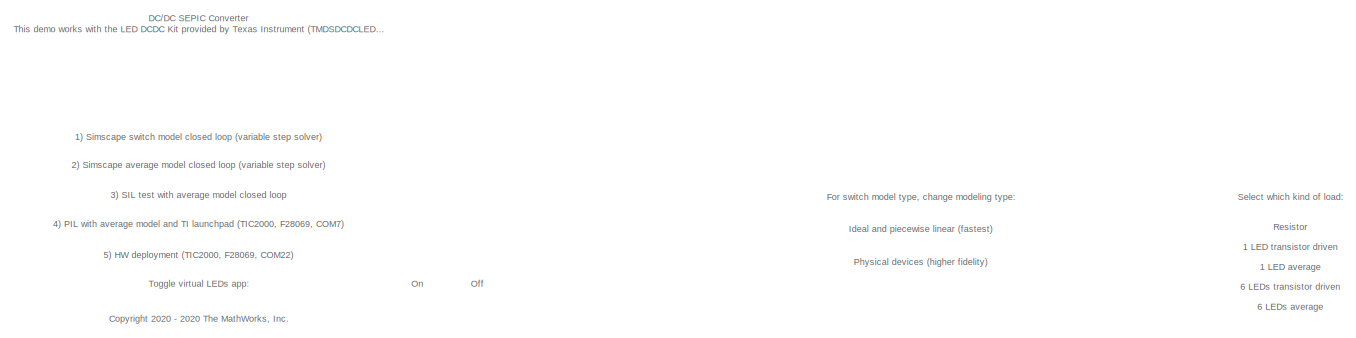
[diagram: root canvas - part 1/3, top center region]
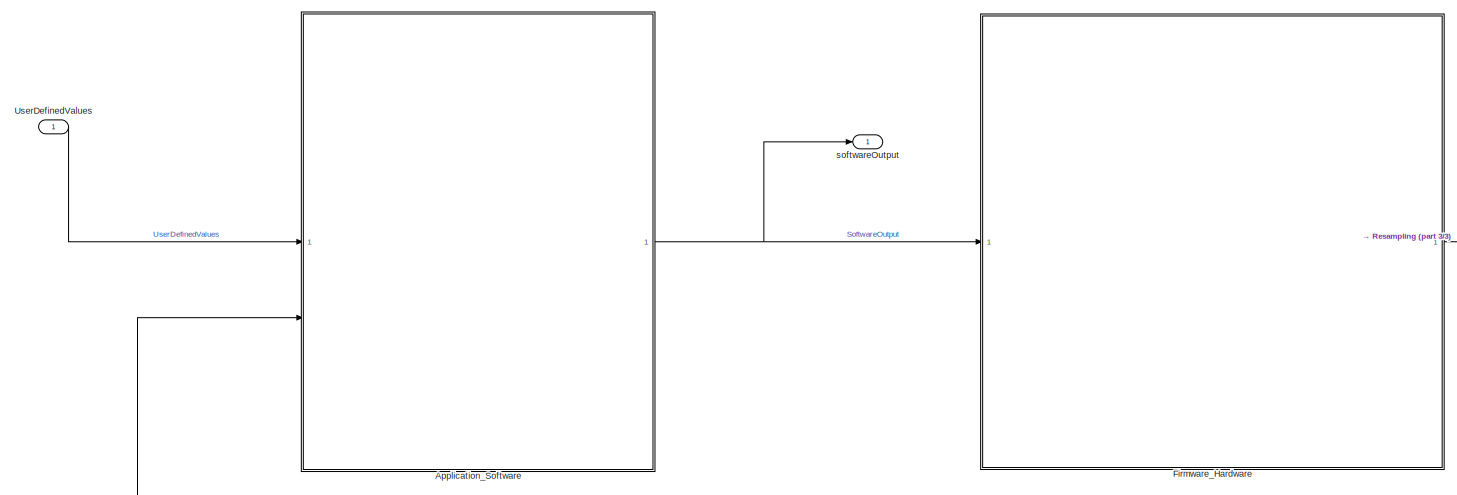
[diagram: root canvas - part 2/3, full width, middle band]
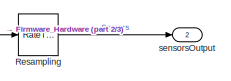
[diagram: root canvas - part 3/3, middle right region]
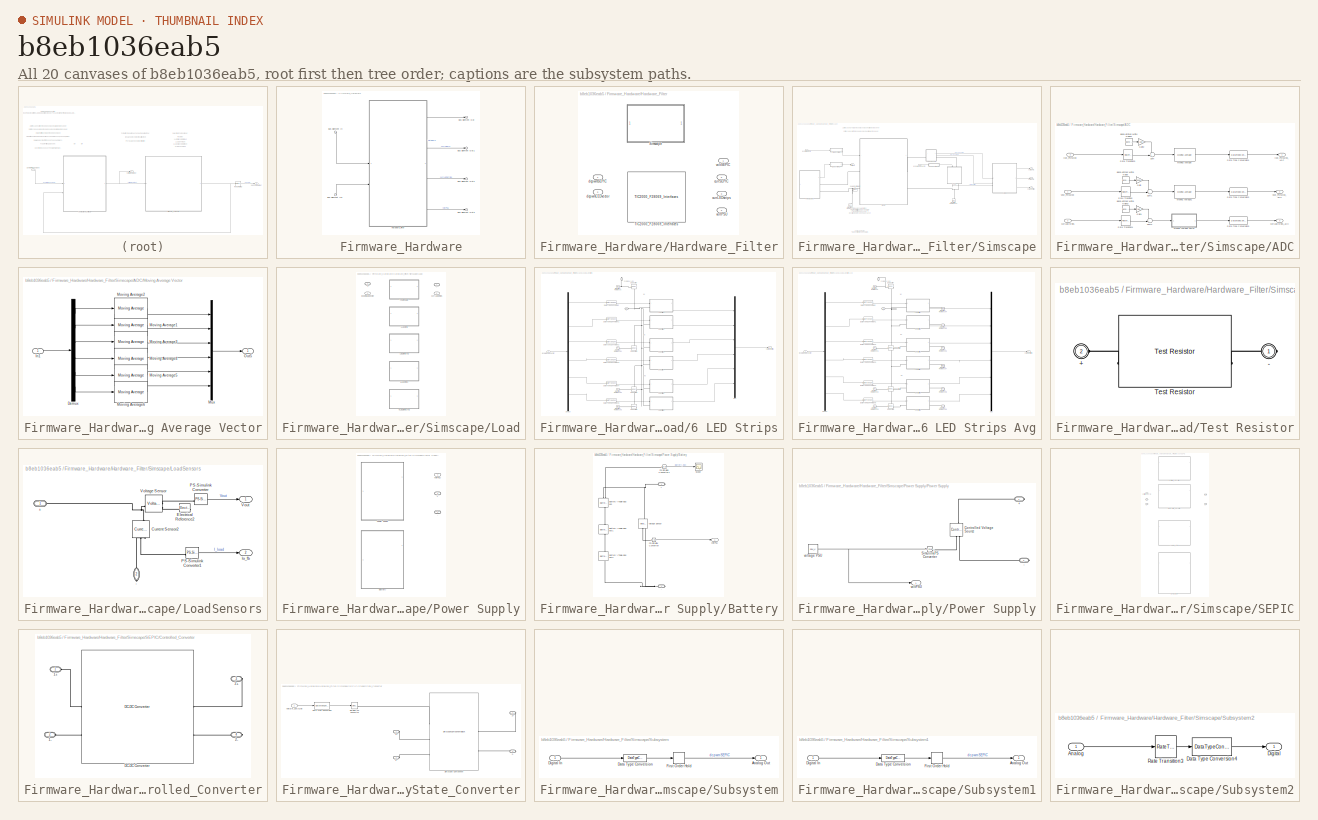
[diagram: thumbnail index - all 20 canvases of the model, root first then tree order]
MODEL slx_b8eb1036eab5
KIND model
CONFIG AbsTol = auto
CONFIG EnableMultiTasking = off
CONFIG FixedStep = ts500us
CONFIG MaxStep = 1
CONFIG MinStep = auto
CONFIG RelTol = 1e-3
CONFIG SampleTimeConstraint = Unconstrained
CONFIG SolverName = ode23t
CONFIG StartFcn = %Deal with possible App Objects still open:\ntry\nresetTiLeds(objLEDs);\nend
CONFIG StartTime = 0.0
CONFIG StopTime = 10
BLOCK [ModelReference] Application_Software
  ModelNameDialog = Application_Software
  ModelReferenceVersion = 7.4
BLOCK [SubSystem] Firmware_Hardware
BLOCK [Inport] Firmware_Hardware/Bus Element In
BLOCK [Inport] Firmware_Hardware/Bus Element In1
BLOCK [Outport] Firmware_Hardware/Bus Element Out
BLOCK [Outport] Firmware_Hardware/Bus Element Out1
BLOCK [Outport] Firmware_Hardware/Bus Element Out2
BLOCK [Outport] Firmware_Hardware/Bus Element Out3
BLOCK [SubSystem] Firmware_Hardware/Hardware_Filter
  AllowZeroVariantControls = on
  Variant = on
  VariantControl = Variant1
BLOCK [SubSystem] Firmware_Hardware/Hardware_Filter/Simscape
  VariantControl = Var_Plant==0
BLOCK [SubSystem] Firmware_Hardware/Hardware_Filter/Simscape/ADC
BLOCK [Reference] Firmware_Hardware/Hardware_Filter/Simscape/ADC/Band-Limited White Noise  REF=simulink/Sources/Band-Limited
White Noise
  SourceBlock = simulink/Sources/Band-Limited\nWhite Noise
  SourceType = Band-Limited White Noise.
BLOCK [Reference] Firmware_Hardware/Hardware_Filter/Simscape/ADC/Band-Limited White Noise1  REF=simulink/Sources/Band-Limited
White Noise
  SourceBlock = simulink/Sources/Band-Limited\nWhite Noise
  SourceType = Band-Limited White Noise.
BLOCK [Reference] Firmware_Hardware/Hardware_Filter/Simscape/ADC/Band-Limited White Noise2  REF=simulink/Sources/Band-Limited
White Noise
  SourceBlock = simulink/Sources/Band-Limited\nWhite Noise
  SourceType = Band-Limited White Noise.
BLOCK [DataTypeConversion] Firmware_Hardware/Hardware_Filter/Simscape/ADC/Data Type Conversion1
  OutDataTypeStr = single
  RndMeth = Floor
  SaturateOnIntegerOverflow = off
BLOCK [DataTypeConversion] Firmware_Hardware/Hardware_Filter/Simscape/ADC/Data Type Conversion2
  OutDataTypeStr = single
  RndMeth = Floor
  SaturateOnIntegerOverflow = off
BLOCK [DataTypeConversion] Firmware_Hardware/Hardware_Filter/Simscape/ADC/Data Type Conversion3
  OutDataTypeStr = single
  RndMeth = Floor
  SaturateOnIntegerOverflow = off
BLOCK [Gain] Firmware_Hardware/Hardware_Filter/Simscape/ADC/Gain
  Gain = 0.006
BLOCK [Gain] Firmware_Hardware/Hardware_Filter/Simscape/ADC/Gain1
  Gain = 1/60
BLOCK [Gain] Firmware_Hardware/Hardware_Filter/Simscape/ADC/Gain2
  Gain = 1/60
BLOCK [Inport] Firmware_Hardware/Hardware_Filter/Simscape/ADC/Iout_PhysMod
  Port = 2
BLOCK [Outport] Firmware_Hardware/Hardware_Filter/Simscape/ADC/Iout_PhysMod_ADC
BLOCK [Reference] Firmware_Hardware/Hardware_Filter/Simscape/ADC/Moving Average  REF=dspstat3/Moving
Average
  SourceBlock = dspstat3/Moving\nAverage
  SourceType = dsp.simulink.MovingAverage
BLOCK [SubSystem] Firmware_Hardware/Hardware_Filter/Simscape/ADC/Moving Average Vector
BLOCK [Demux] Firmware_Hardware/Hardware_Filter/Simscape/ADC/Moving Average Vector/Demux
  Outputs = 6
BLOCK [Inport] Firmware_Hardware/Hardware_Filter/Simscape/ADC/Moving Average Vector/In1
BLOCK [Reference] Firmware_Hardware/Hardware_Filter/Simscape/ADC/Moving Average Vector/Moving Average1  REF=dspstat3/Moving
Average
  SourceBlock = dspstat3/Moving\nAverage
  SourceType = dsp.simulink.MovingAverage
BLOCK [Reference] Firmware_Hardware/Hardware_Filter/Simscape/ADC/Moving Average Vector/Moving Average2  REF=dspstat3/Moving
Average
  SourceBlock = dspstat3/Moving\nAverage
  SourceType = dsp.simulink.MovingAverage
BLOCK [Reference] Firmware_Hardware/Hardware_Filter/Simscape/ADC/Moving Average Vector/Moving Average3  REF=dspstat3/Moving
Average
  SourceBlock = dspstat3/Moving\nAverage
  SourceType = dsp.simulink.MovingAverage
BLOCK [Reference] Firmware_Hardware/Hardware_Filter/Simscape/ADC/Moving Average Vector/Moving Average4  REF=dspstat3/Moving
Average
  SourceBlock = dspstat3/Moving\nAverage
  SourceType = dsp.simulink.MovingAverage
BLOCK [Reference] Firmware_Hardware/Hardware_Filter/Simscape/ADC/Moving Average Vector/Moving Average5  REF=dspstat3/Moving
Average
  SourceBlock = dspstat3/Moving\nAverage
  SourceType = dsp.simulink.MovingAverage
BLOCK [Reference] Firmware_Hardware/Hardware_Filter/Simscape/ADC/Moving Average Vector/Moving Average6  REF=dspstat3/Moving
Average
  SourceBlock = dspstat3/Moving\nAverage
  SourceType = dsp.simulink.MovingAverage
BLOCK [Mux] Firmware_Hardware/Hardware_Filter/Simscape/ADC/Moving Average Vector/Mux
  DisplayOption = bar
  Inputs = 6
BLOCK [Outport] Firmware_Hardware/Hardware_Filter/Simscape/ADC/Moving Average Vector/Out5
BLOCK [Reference] Firmware_Hardware/Hardware_Filter/Simscape/ADC/Moving Average1  REF=dspstat3/Moving
Average
  SourceBlock = dspstat3/Moving\nAverage
  SourceType = dsp.simulink.MovingAverage
BLOCK [RateTransition] Firmware_Hardware/Hardware_Filter/Simscape/ADC/Rate Transition
  OutPortSampleTime = ts500us
BLOCK [RateTransition] Firmware_Hardware/Hardware_Filter/Simscape/ADC/Rate Transition3
  OutPortSampleTime = ts10ms
BLOCK [RateTransition] Firmware_Hardware/Hardware_Filter/Simscape/ADC/Rate Transition4
  OutPortSampleTime = ts500us
BLOCK [Sum] Firmware_Hardware/Hardware_Filter/Simscape/ADC/Sum
  Inputs = ++|
BLOCK [Sum] Firmware_Hardware/Hardware_Filter/Simscape/ADC/Sum1
  Inputs = ++|
BLOCK [Sum] Firmware_Hardware/Hardware_Filter/Simscape/ADC/Sum2
  Inputs = ++|
BLOCK [Inport] Firmware_Hardware/Hardware_Filter/Simscape/ADC/Vout_PhysMod
BLOCK [Outport] Firmware_Hardware/Hardware_Filter/Simscape/ADC/Vout_PhysMod_ADC
  Port = 2
BLOCK [Inport] Firmware_Hardware/Hardware_Filter/Simscape/ADC/currLEDstrips
  Port = 3
BLOCK [Outport] Firmware_Hardware/Hardware_Filter/Simscape/ADC/currLEDstrips_ADC
  Port = 3
BLOCK [Reference] Firmware_Hardware/Hardware_Filter/Simscape/Electrical Reference1  REF=fl_lib/Electrical/Electrical Elements/Electrical Reference
  NameLocation = right
  SourceBlock = fl_lib/Electrical/Electrical Elements/Electrical Reference
  SourceType = Electrical Reference
BLOCK [Reference] Firmware_Hardware/Hardware_Filter/Simscape/Electrical Reference2  REF=fl_lib/Electrical/Electrical Elements/Electrical Reference
  NameLocation = right
  SourceBlock = fl_lib/Electrical/Electrical Elements/Electrical Reference
  SourceType = Electrical Reference
BLOCK [SubSystem] Firmware_Hardware/Hardware_Filter/Simscape/Load
  LabelModeActiveChoice = SixLEDStripsAvg
  NameLocation = right
  Variant = on
  VariantControl = Variant1
  VariantControlMode = label
BLOCK [PMIOPort] Firmware_Hardware/Hardware_Filter/Simscape/Load/+
  Port = 2
  Side = Left
BLOCK [PMIOPort] Firmware_Hardware/Hardware_Filter/Simscape/Load/-
  Side = Right
BLOCK [SubSystem] Firmware_Hardware/Hardware_Filter/Simscape/Load/1 LED Strip
  ReferencedSubsystem = s1_LED_Strip
  VariantControl = SingleLEDStrip
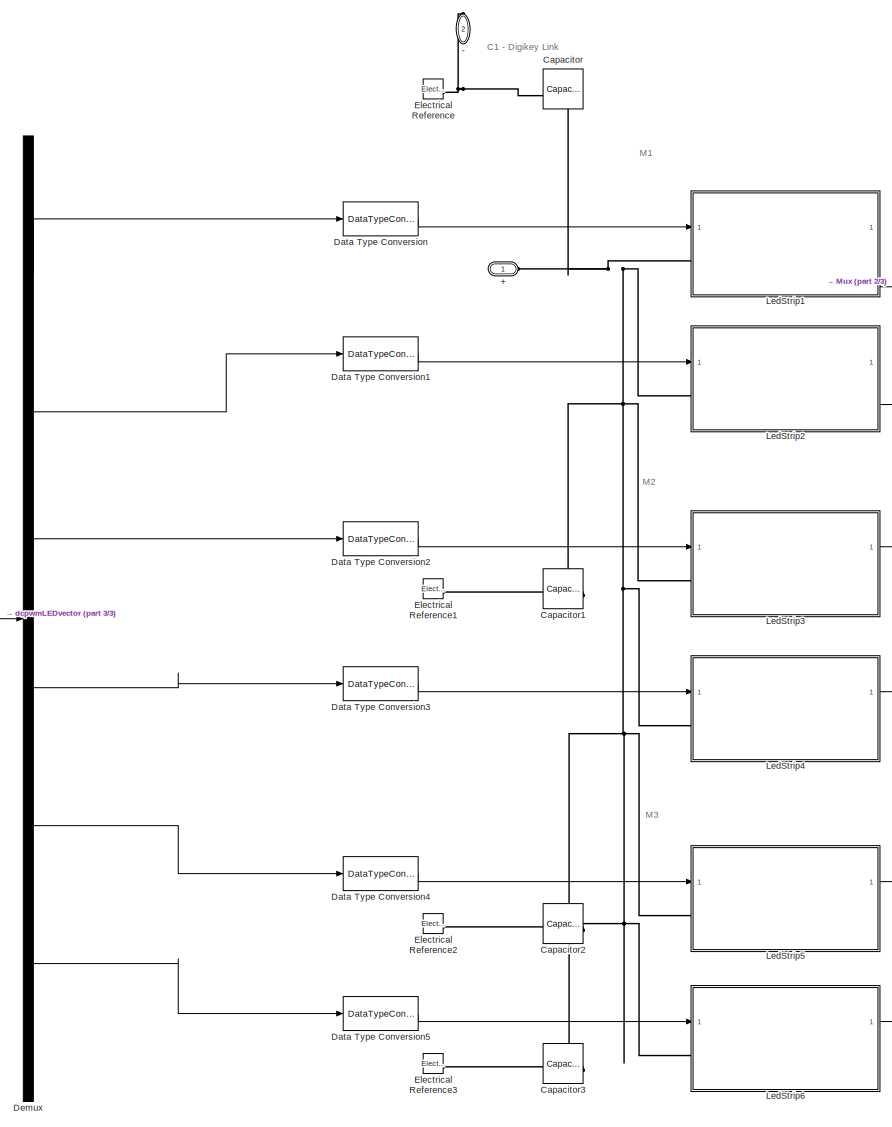
[diagram: Firmware_Hardware/Hardware_Filter/Simscape/Load/6 LED Strips - part 1/3, center side, full height]
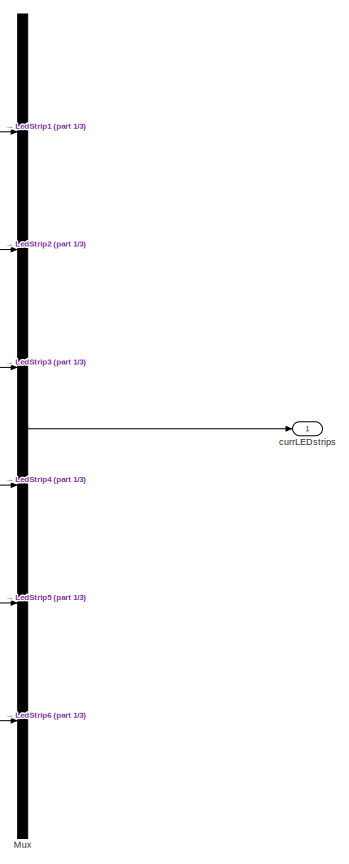
[diagram: Firmware_Hardware/Hardware_Filter/Simscape/Load/6 LED Strips - part 2/3, right side, full height]
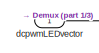
[diagram: Firmware_Hardware/Hardware_Filter/Simscape/Load/6 LED Strips - part 3/3, middle left region]
BLOCK [SubSystem] Firmware_Hardware/Hardware_Filter/Simscape/Load/6 LED Strips
  VariantControl = SixLEDStrips
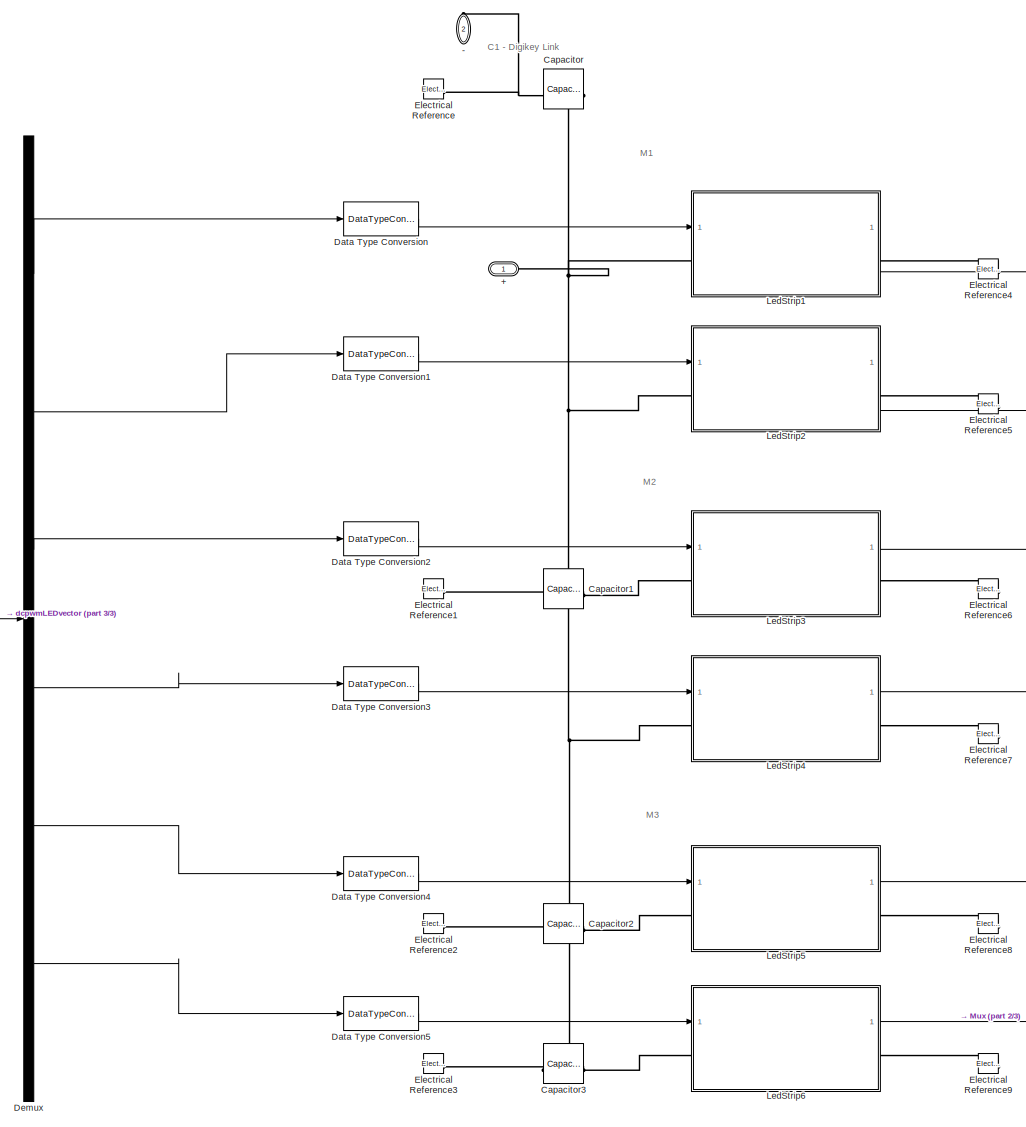
[diagram: Firmware_Hardware/Hardware_Filter/Simscape/Load/6 LED Strips Avg - part 1/3, center side, full height]
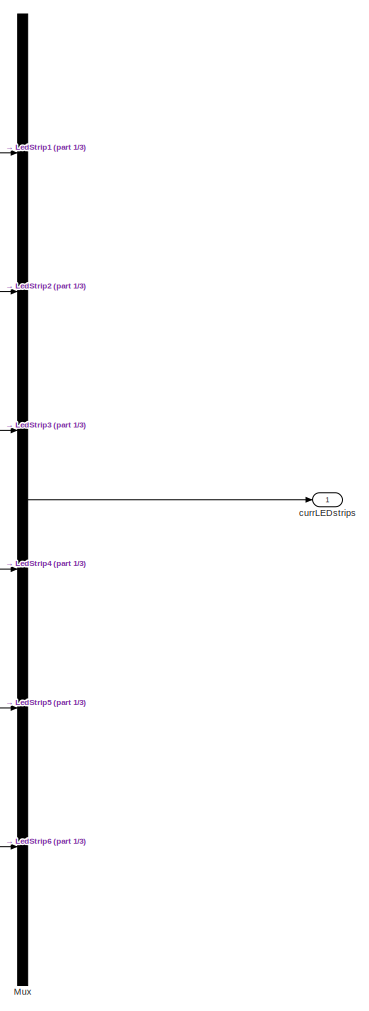
[diagram: Firmware_Hardware/Hardware_Filter/Simscape/Load/6 LED Strips Avg - part 2/3, right side, full height]
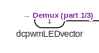
[diagram: Firmware_Hardware/Hardware_Filter/Simscape/Load/6 LED Strips Avg - part 3/3, middle left region]
BLOCK [SubSystem] Firmware_Hardware/Hardware_Filter/Simscape/Load/6 LED Strips Avg
  VariantControl = SixLEDStripsAvg
BLOCK [PMIOPort] Firmware_Hardware/Hardware_Filter/Simscape/Load/6 LED Strips Avg/+
  Side = Left
BLOCK [PMIOPort] Firmware_Hardware/Hardware_Filter/Simscape/Load/6 LED Strips Avg/-
  NameLocation = right
  Port = 2
  Side = Right
BLOCK [Reference] Firmware_Hardware/Hardware_Filter/Simscape/Load/6 LED Strips Avg/Capacitor  REF=ee_lib/Passive/Capacitor
  NameLocation = top
  SourceBlock = ee_lib/Passive/Capacitor
  SourceType = Capacitor
BLOCK [Reference] Firmware_Hardware/Hardware_Filter/Simscape/Load/6 LED Strips Avg/Capacitor1  REF=ee_lib/Passive/Capacitor
  NameLocation = top
  SourceBlock = ee_lib/Passive/Capacitor
  SourceType = Capacitor
BLOCK [Reference] Firmware_Hardware/Hardware_Filter/Simscape/Load/6 LED Strips Avg/Capacitor2  REF=ee_lib/Passive/Capacitor
  NameLocation = top
  SourceBlock = ee_lib/Passive/Capacitor
  SourceType = Capacitor
BLOCK [Reference] Firmware_Hardware/Hardware_Filter/Simscape/Load/6 LED Strips Avg/Capacitor3  REF=ee_lib/Passive/Capacitor
  NameLocation = top
  SourceBlock = ee_lib/Passive/Capacitor
  SourceType = Capacitor
BLOCK [DataTypeConversion] Firmware_Hardware/Hardware_Filter/Simscape/Load/6 LED Strips Avg/Data Type Conversion
  OutDataTypeStr = double
  RndMeth = Floor
  SaturateOnIntegerOverflow = off
BLOCK [DataTypeConversion] Firmware_Hardware/Hardware_Filter/Simscape/Load/6 LED Strips Avg/Data Type Conversion1
  OutDataTypeStr = double
  RndMeth = Floor
  SaturateOnIntegerOverflow = off
BLOCK [DataTypeConversion] Firmware_Hardware/Hardware_Filter/Simscape/Load/6 LED Strips Avg/Data Type Conversion2
  OutDataTypeStr = double
  RndMeth = Floor
  SaturateOnIntegerOverflow = off
BLOCK [DataTypeConversion] Firmware_Hardware/Hardware_Filter/Simscape/Load/6 LED Strips Avg/Data Type Conversion3
  OutDataTypeStr = double
  RndMeth = Floor
  SaturateOnIntegerOverflow = off
BLOCK [DataTypeConversion] Firmware_Hardware/Hardware_Filter/Simscape/Load/6 LED Strips Avg/Data Type Conversion4
  OutDataTypeStr = double
  RndMeth = Floor
  SaturateOnIntegerOverflow = off
BLOCK [DataTypeConversion] Firmware_Hardware/Hardware_Filter/Simscape/Load/6 LED Strips Avg/Data Type Conversion5
  OutDataTypeStr = double
  RndMeth = Floor
  SaturateOnIntegerOverflow = off
BLOCK [Demux] Firmware_Hardware/Hardware_Filter/Simscape/Load/6 LED Strips Avg/Demux
  Outputs = 6
BLOCK [Reference] Firmware_Hardware/Hardware_Filter/Simscape/Load/6 LED Strips Avg/Electrical Reference  REF=fl_lib/Electrical/Electrical Elements/Electrical Reference
  SourceBlock = fl_lib/Electrical/Electrical Elements/Electrical Reference
  SourceType = Electrical Reference
BLOCK [Reference] Firmware_Hardware/Hardware_Filter/Simscape/Load/6 LED Strips Avg/Electrical Reference1  REF=fl_lib/Electrical/Electrical Elements/Electrical Reference
  SourceBlock = fl_lib/Electrical/Electrical Elements/Electrical Reference
  SourceType = Electrical Reference
BLOCK [Reference] Firmware_Hardware/Hardware_Filter/Simscape/Load/6 LED Strips Avg/Electrical Reference2  REF=fl_lib/Electrical/Electrical Elements/Electrical Reference
  SourceBlock = fl_lib/Electrical/Electrical Elements/Electrical Reference
  SourceType = Electrical Reference
BLOCK [Reference] Firmware_Hardware/Hardware_Filter/Simscape/Load/6 LED Strips Avg/Electrical Reference3  REF=fl_lib/Electrical/Electrical Elements/Electrical Reference
  SourceBlock = fl_lib/Electrical/Electrical Elements/Electrical Reference
  SourceType = Electrical Reference
BLOCK [Reference] Firmware_Hardware/Hardware_Filter/Simscape/Load/6 LED Strips Avg/Electrical Reference4  REF=fl_lib/Electrical/Electrical Elements/Electrical Reference
  NameLocation = top
  SourceBlock = fl_lib/Electrical/Electrical Elements/Electrical Reference
  SourceType = Electrical Reference
BLOCK [Reference] Firmware_Hardware/Hardware_Filter/Simscape/Load/6 LED Strips Avg/Electrical Reference5  REF=fl_lib/Electrical/Electrical Elements/Electrical Reference
  NameLocation = top
  SourceBlock = fl_lib/Electrical/Electrical Elements/Electrical Reference
  SourceType = Electrical Reference
BLOCK [Reference] Firmware_Hardware/Hardware_Filter/Simscape/Load/6 LED Strips Avg/Electrical Reference6  REF=fl_lib/Electrical/Electrical Elements/Electrical Reference
  NameLocation = top
  SourceBlock = fl_lib/Electrical/Electrical Elements/Electrical Reference
  SourceType = Electrical Reference
BLOCK [Reference] Firmware_Hardware/Hardware_Filter/Simscape/Load/6 LED Strips Avg/Electrical Reference7  REF=fl_lib/Electrical/Electrical Elements/Electrical Reference
  NameLocation = top
  SourceBlock = fl_lib/Electrical/Electrical Elements/Electrical Reference
  SourceType = Electrical Reference
BLOCK [Reference] Firmware_Hardware/Hardware_Filter/Simscape/Load/6 LED Strips Avg/Electrical Reference8  REF=fl_lib/Electrical/Electrical Elements/Electrical Reference
  NameLocation = top
  SourceBlock = fl_lib/Electrical/Electrical Elements/Electrical Reference
  SourceType = Electrical Reference
BLOCK [Reference] Firmware_Hardware/Hardware_Filter/Simscape/Load/6 LED Strips Avg/Electrical Reference9  REF=fl_lib/Electrical/Electrical Elements/Electrical Reference
  NameLocation = top
  SourceBlock = fl_lib/Electrical/Electrical Elements/Electrical Reference
  SourceType = Electrical Reference
BLOCK [SubSystem] Firmware_Hardware/Hardware_Filter/Simscape/Load/6 LED Strips Avg/LedStrip1
  ReferencedSubsystem = Subsystem_LEDStripAvg
BLOCK [SubSystem] Firmware_Hardware/Hardware_Filter/Simscape/Load/6 LED Strips Avg/LedStrip2
  ReferencedSubsystem = Subsystem_LEDStripAvg
BLOCK [SubSystem] Firmware_Hardware/Hardware_Filter/Simscape/Load/6 LED Strips Avg/LedStrip3
  ReferencedSubsystem = Subsystem_LEDStripAvg
BLOCK [SubSystem] Firmware_Hardware/Hardware_Filter/Simscape/Load/6 LED Strips Avg/LedStrip4
  ReferencedSubsystem = Subsystem_LEDStripAvg
BLOCK [SubSystem] Firmware_Hardware/Hardware_Filter/Simscape/Load/6 LED Strips Avg/LedStrip5
  ReferencedSubsystem = Subsystem_LEDStripAvg
BLOCK [SubSystem] Firmware_Hardware/Hardware_Filter/Simscape/Load/6 LED Strips Avg/LedStrip6
  ReferencedSubsystem = Subsystem_LEDStripAvg
BLOCK [Mux] Firmware_Hardware/Hardware_Filter/Simscape/Load/6 LED Strips Avg/Mux
  DisplayOption = bar
  Inputs = 6
BLOCK [Outport] Firmware_Hardware/Hardware_Filter/Simscape/Load/6 LED Strips Avg/currLEDstrips
  Unit = mA
  VectorParamsAs1DForOutWhenUnconnected = off
BLOCK [Inport] Firmware_Hardware/Hardware_Filter/Simscape/Load/6 LED Strips Avg/dcpwmLEDvector
BLOCK [PMIOPort] Firmware_Hardware/Hardware_Filter/Simscape/Load/6 LED Strips/+
  Side = Left
BLOCK [PMIOPort] Firmware_Hardware/Hardware_Filter/Simscape/Load/6 LED Strips/-
  NameLocation = right
  Port = 2
  Side = Right
BLOCK [Reference] Firmware_Hardware/Hardware_Filter/Simscape/Load/6 LED Strips/Capacitor  REF=ee_lib/Passive/Capacitor
  NameLocation = top
  SourceBlock = ee_lib/Passive/Capacitor
  SourceType = Capacitor
BLOCK [Reference] Firmware_Hardware/Hardware_Filter/Simscape/Load/6 LED Strips/Capacitor1  REF=ee_lib/Passive/Capacitor
  NameLocation = top
  SourceBlock = ee_lib/Passive/Capacitor
  SourceType = Capacitor
BLOCK [Reference] Firmware_Hardware/Hardware_Filter/Simscape/Load/6 LED Strips/Capacitor2  REF=ee_lib/Passive/Capacitor
  NameLocation = top
  SourceBlock = ee_lib/Passive/Capacitor
  SourceType = Capacitor
BLOCK [Reference] Firmware_Hardware/Hardware_Filter/Simscape/Load/6 LED Strips/Capacitor3  REF=ee_lib/Passive/Capacitor
  NameLocation = top
  SourceBlock = ee_lib/Passive/Capacitor
  SourceType = Capacitor
BLOCK [DataTypeConversion] Firmware_Hardware/Hardware_Filter/Simscape/Load/6 LED Strips/Data Type Conversion
  OutDataTypeStr = double
  RndMeth = Floor
  SaturateOnIntegerOverflow = off
BLOCK [DataTypeConversion] Firmware_Hardware/Hardware_Filter/Simscape/Load/6 LED Strips/Data Type Conversion1
  OutDataTypeStr = double
  RndMeth = Floor
  SaturateOnIntegerOverflow = off
BLOCK [DataTypeConversion] Firmware_Hardware/Hardware_Filter/Simscape/Load/6 LED Strips/Data Type Conversion2
  OutDataTypeStr = double
  RndMeth = Floor
  SaturateOnIntegerOverflow = off
BLOCK [DataTypeConversion] Firmware_Hardware/Hardware_Filter/Simscape/Load/6 LED Strips/Data Type Conversion3
  OutDataTypeStr = double
  RndMeth = Floor
  SaturateOnIntegerOverflow = off
BLOCK [DataTypeConversion] Firmware_Hardware/Hardware_Filter/Simscape/Load/6 LED Strips/Data Type Conversion4
  OutDataTypeStr = double
  RndMeth = Floor
  SaturateOnIntegerOverflow = off
BLOCK [DataTypeConversion] Firmware_Hardware/Hardware_Filter/Simscape/Load/6 LED Strips/Data Type Conversion5
  OutDataTypeStr = double
  RndMeth = Floor
  SaturateOnIntegerOverflow = off
BLOCK [Demux] Firmware_Hardware/Hardware_Filter/Simscape/Load/6 LED Strips/Demux
  Outputs = 6
BLOCK [Reference] Firmware_Hardware/Hardware_Filter/Simscape/Load/6 LED Strips/Electrical Reference  REF=fl_lib/Electrical/Electrical Elements/Electrical Reference
  SourceBlock = fl_lib/Electrical/Electrical Elements/Electrical Reference
  SourceType = Electrical Reference
BLOCK [Reference] Firmware_Hardware/Hardware_Filter/Simscape/Load/6 LED Strips/Electrical Reference1  REF=fl_lib/Electrical/Electrical Elements/Electrical Reference
  SourceBlock = fl_lib/Electrical/Electrical Elements/Electrical Reference
  SourceType = Electrical Reference
BLOCK [Reference] Firmware_Hardware/Hardware_Filter/Simscape/Load/6 LED Strips/Electrical Reference2  REF=fl_lib/Electrical/Electrical Elements/Electrical Reference
  SourceBlock = fl_lib/Electrical/Electrical Elements/Electrical Reference
  SourceType = Electrical Reference
BLOCK [Reference] Firmware_Hardware/Hardware_Filter/Simscape/Load/6 LED Strips/Electrical Reference3  REF=fl_lib/Electrical/Electrical Elements/Electrical Reference
  SourceBlock = fl_lib/Electrical/Electrical Elements/Electrical Reference
  SourceType = Electrical Reference
BLOCK [SubSystem] Firmware_Hardware/Hardware_Filter/Simscape/Load/6 LED Strips/LedStrip1
  ReferencedSubsystem = Subsystem_LEDStrip
BLOCK [SubSystem] Firmware_Hardware/Hardware_Filter/Simscape/Load/6 LED Strips/LedStrip2
  ReferencedSubsystem = Subsystem_LEDStrip
BLOCK [SubSystem] Firmware_Hardware/Hardware_Filter/Simscape/Load/6 LED Strips/LedStrip3
  ReferencedSubsystem = Subsystem_LEDStrip
BLOCK [SubSystem] Firmware_Hardware/Hardware_Filter/Simscape/Load/6 LED Strips/LedStrip4
  ReferencedSubsystem = Subsystem_LEDStrip
BLOCK [SubSystem] Firmware_Hardware/Hardware_Filter/Simscape/Load/6 LED Strips/LedStrip5
  ReferencedSubsystem = Subsystem_LEDStrip
BLOCK [SubSystem] Firmware_Hardware/Hardware_Filter/Simscape/Load/6 LED Strips/LedStrip6
  ReferencedSubsystem = Subsystem_LEDStrip
BLOCK [Mux] Firmware_Hardware/Hardware_Filter/Simscape/Load/6 LED Strips/Mux
  DisplayOption = bar
  Inputs = 6
BLOCK [Outport] Firmware_Hardware/Hardware_Filter/Simscape/Load/6 LED Strips/currLEDstrips
  Unit = mA
  VectorParamsAs1DForOutWhenUnconnected = off
BLOCK [Inport] Firmware_Hardware/Hardware_Filter/Simscape/Load/6 LED Strips/dcpwmLEDvector
BLOCK [SubSystem] Firmware_Hardware/Hardware_Filter/Simscape/Load/LED Strip Avg
  ReferencedSubsystem = LED_Strip_Avg
  VariantControl = SingleLEDStripAvg
BLOCK [SubSystem] Firmware_Hardware/Hardware_Filter/Simscape/Load/Test Resistor
  VariantControl = Resistor
BLOCK [PMIOPort] Firmware_Hardware/Hardware_Filter/Simscape/Load/Test Resistor/+
  Port = 2
  Side = Left
BLOCK [PMIOPort] Firmware_Hardware/Hardware_Filter/Simscape/Load/Test Resistor/-
  Side = Right
BLOCK [Reference] Firmware_Hardware/Hardware_Filter/Simscape/Load/Test Resistor/Test Resistor  REF=SEPIC_utilities/Test Resistor
  SourceBlock = SEPIC_utilities/Test Resistor
  SourceType = Test Resistor
BLOCK [Outport] Firmware_Hardware/Hardware_Filter/Simscape/Load/currLEDstrips
  Unit = mA
  VectorParamsAs1DForOutWhenUnconnected = off
BLOCK [Inport] Firmware_Hardware/Hardware_Filter/Simscape/Load/dcpwmLEDvector
BLOCK [SubSystem] Firmware_Hardware/Hardware_Filter/Simscape/LoadSensors
BLOCK [PMIOPort] Firmware_Hardware/Hardware_Filter/Simscape/LoadSensors/+
  Side = Left
BLOCK [PMIOPort] Firmware_Hardware/Hardware_Filter/Simscape/LoadSensors/-
  NameLocation = left
  Port = 2
  Side = Right
BLOCK [Reference] Firmware_Hardware/Hardware_Filter/Simscape/LoadSensors/Current Sensor2  REF=fl_lib/Electrical/Electrical Sensors/Current Sensor
  NameLocation = left
  SourceBlock = fl_lib/Electrical/Electrical Sensors/Current Sensor
  SourceType = Current Sensor
BLOCK [Reference] Firmware_Hardware/Hardware_Filter/Simscape/LoadSensors/Electrical Reference2  REF=fl_lib/Electrical/Electrical Elements/Electrical Reference
  NameLocation = top
  SourceBlock = fl_lib/Electrical/Electrical Elements/Electrical Reference
  SourceType = Electrical Reference
BLOCK [Outport] Firmware_Hardware/Hardware_Filter/Simscape/LoadSensors/Io_fb
  Port = 2
  VectorParamsAs1DForOutWhenUnconnected = off
BLOCK [Reference] Firmware_Hardware/Hardware_Filter/Simscape/LoadSensors/PS-Simulink Converter  REF=nesl_utility/PS-Simulink
Converter
  SourceBlock = nesl_utility/PS-Simulink\nConverter
  SourceType = PS-Simulink\nConverter
BLOCK [Reference] Firmware_Hardware/Hardware_Filter/Simscape/LoadSensors/PS-Simulink Converter1  REF=nesl_utility/PS-Simulink
Converter
  SourceBlock = nesl_utility/PS-Simulink\nConverter
  SourceType = PS-Simulink\nConverter
BLOCK [Reference] Firmware_Hardware/Hardware_Filter/Simscape/LoadSensors/Voltage Sensor  REF=fl_lib/Electrical/Electrical Sensors/Voltage Sensor
  SourceBlock = fl_lib/Electrical/Electrical Sensors/Voltage Sensor
  SourceType = Voltage Sensor
BLOCK [Outport] Firmware_Hardware/Hardware_Filter/Simscape/LoadSensors/Vout
  VectorParamsAs1DForOutWhenUnconnected = off
BLOCK [SubSystem] Firmware_Hardware/Hardware_Filter/Simscape/Power Supply
  LabelModeActiveChoice = PowerSupply
  Variant = on
  VariantControl = Variant1
  VariantControlMode = label
BLOCK [PMIOPort] Firmware_Hardware/Hardware_Filter/Simscape/Power Supply/+
  Side = Right
BLOCK [PMIOPort] Firmware_Hardware/Hardware_Filter/Simscape/Power Supply/-
  Port = 2
  Side = Right
BLOCK [SubSystem] Firmware_Hardware/Hardware_Filter/Simscape/Power Supply/Battery
  VariantControl = Battery
BLOCK [PMIOPort] Firmware_Hardware/Hardware_Filter/Simscape/Power Supply/Battery/+
  Side = Right
BLOCK [PMIOPort] Firmware_Hardware/Hardware_Filter/Simscape/Power Supply/Battery/-
  Port = 2
  Side = Right
BLOCK [Reference] Firmware_Hardware/Hardware_Filter/Simscape/Power Supply/Battery/Battery (Table-Based)  REF=batteryecm_lib/Battery
(Table-Based)
  NameLocation = right
  SourceBlock = batteryecm_lib/Battery\n(Table-Based)
  SourceType = Battery\n(Table-Based)
BLOCK [Reference] Firmware_Hardware/Hardware_Filter/Simscape/Power Supply/Battery/Battery (Table-Based)1  REF=batteryecm_lib/Battery
(Table-Based)
  NameLocation = right
  SourceBlock = batteryecm_lib/Battery\n(Table-Based)
  SourceType = Battery\n(Table-Based)
BLOCK [Reference] Firmware_Hardware/Hardware_Filter/Simscape/Power Supply/Battery/Battery (Table-Based)2  REF=batteryecm_lib/Battery
(Table-Based)
  NameLocation = right
  SourceBlock = batteryecm_lib/Battery\n(Table-Based)
  SourceType = Battery\n(Table-Based)
BLOCK [Reference] Firmware_Hardware/Hardware_Filter/Simscape/Power Supply/Battery/PS-Simulink Converter  REF=nesl_utility/PS-Simulink
Converter
  SourceBlock = nesl_utility/PS-Simulink\nConverter
  SourceType = PS-Simulink\nConverter
BLOCK [Reference] Firmware_Hardware/Hardware_Filter/Simscape/Power Supply/Battery/PS-Simulink Converter1  REF=nesl_utility/PS-Simulink
Converter
  SourceBlock = nesl_utility/PS-Simulink\nConverter
  SourceType = PS-Simulink\nConverter
BLOCK [Scope] Firmware_Hardware/Hardware_Filter/Simscape/Power Supply/Battery/Scope
  Floating = off
  NumInputPorts = 1
  ScopeSpecificationString = Simulink.scopes.TimeScopeBlockCfg('CurrentConfiguration', extmgr.ConfigurationSet(extmgr.Configuration('Core','General UI',true),extmgr.Configuration('Core','Source UI',true),extmgr.Configuration('Sources','WiredSimulink',true,'DataLoggingVariableName','ScopeData8'),extmgr.Configuration('Visuals','Time Domain',true,'SerializedDisplays',{struct('MinYLimReal','0.79985','MaxYLimReal','0.80002','YLabe...<+1368ch>
BLOCK [Reference] Firmware_Hardware/Hardware_Filter/Simscape/Power Supply/Battery/Voltage Sensor  REF=fl_lib/Electrical/Electrical Sensors/Voltage Sensor
  NameLocation = right
  SourceBlock = fl_lib/Electrical/Electrical Sensors/Voltage Sensor
  SourceType = Voltage Sensor
BLOCK [Outport] Firmware_Hardware/Hardware_Filter/Simscape/Power Supply/Battery/voltPSU
  Unit = V
  VectorParamsAs1DForOutWhenUnconnected = off
BLOCK [SubSystem] Firmware_Hardware/Hardware_Filter/Simscape/Power Supply/Power Supply
  VariantControl = PowerSupply
BLOCK [PMIOPort] Firmware_Hardware/Hardware_Filter/Simscape/Power Supply/Power Supply/+
  Side = Right
BLOCK [PMIOPort] Firmware_Hardware/Hardware_Filter/Simscape/Power Supply/Power Supply/-
  Port = 2
  Side = Right
BLOCK [Reference] Firmware_Hardware/Hardware_Filter/Simscape/Power Supply/Power Supply/Controlled Voltage Source  REF=fl_lib/Electrical/Electrical Sources/Controlled Voltage
Source
  NameLocation = right
  SourceBlock = fl_lib/Electrical/Electrical Sources/Controlled Voltage\nSource
  SourceType = Controlled Voltage\nSource
BLOCK [Reference] Firmware_Hardware/Hardware_Filter/Simscape/Power Supply/Power Supply/Simulink-PS Converter  REF=nesl_utility/Simulink-PS
Converter
  SourceBlock = nesl_utility/Simulink-PS\nConverter
  SourceType = Simulink-PS\nConverter
BLOCK [Outport] Firmware_Hardware/Hardware_Filter/Simscape/Power Supply/Power Supply/voltPSU
  Unit = V
  VectorParamsAs1DForOutWhenUnconnected = off
BLOCK [Constant] Firmware_Hardware/Hardware_Filter/Simscape/Power Supply/Power Supply/voltage PSU
  OutDataTypeStr = double
  Value = psu_V
BLOCK [Outport] Firmware_Hardware/Hardware_Filter/Simscape/Power Supply/voltPSU
BLOCK [SubSystem] Firmware_Hardware/Hardware_Filter/Simscape/SEPIC
  Variant = on
  VariantControl = Variant1
BLOCK [PMIOPort] Firmware_Hardware/Hardware_Filter/Simscape/SEPIC/1+
  Side = Left
BLOCK [PMIOPort] Firmware_Hardware/Hardware_Filter/Simscape/SEPIC/1-
  Port = 2
  Side = Left
BLOCK [PMIOPort] Firmware_Hardware/Hardware_Filter/Simscape/SEPIC/2+
  Port = 3
  Side = Right
BLOCK [PMIOPort] Firmware_Hardware/Hardware_Filter/Simscape/SEPIC/2-
  Port = 4
  Side = Right
BLOCK [SubSystem] Firmware_Hardware/Hardware_Filter/Simscape/SEPIC/Average_SEPIC
  ReferencedSubsystem = Average_SEPIC
  VariantControl = Var_Converter==3
BLOCK [SubSystem] Firmware_Hardware/Hardware_Filter/Simscape/SEPIC/Controlled_Converter
  VariantControl = Var_Converter==0
BLOCK [PMIOPort] Firmware_Hardware/Hardware_Filter/Simscape/SEPIC/Controlled_Converter/1+
  Side = Left
BLOCK [PMIOPort] Firmware_Hardware/Hardware_Filter/Simscape/SEPIC/Controlled_Converter/1-
  Port = 2
  Side = Left
BLOCK [PMIOPort] Firmware_Hardware/Hardware_Filter/Simscape/SEPIC/Controlled_Converter/2+
  Port = 3
  Side = Right
BLOCK [PMIOPort] Firmware_Hardware/Hardware_Filter/Simscape/SEPIC/Controlled_Converter/2-
  Port = 4
  Side = Right
BLOCK [Reference] Firmware_Hardware/Hardware_Filter/Simscape/SEPIC/Controlled_Converter/DC-DC Converter  REF=ee_lib/Semiconductors &
Converters/Converters/DC-DC Converter
  SourceBlock = ee_lib/Semiconductors &\nConverters/Converters/DC-DC Converter
  SourceType = DC-DC Converter
BLOCK [SubSystem] Firmware_Hardware/Hardware_Filter/Simscape/SEPIC/SEPIC_Circuit
  ReferencedSubsystem = SEPIC_Circuit
  VariantControl = Var_Converter==2
BLOCK [SubSystem] Firmware_Hardware/Hardware_Filter/Simscape/SEPIC/SteadyState_Converter
  VariantControl = Var_Converter==1
BLOCK [PMIOPort] Firmware_Hardware/Hardware_Filter/Simscape/SEPIC/SteadyState_Converter/1+
  Side = Left
BLOCK [PMIOPort] Firmware_Hardware/Hardware_Filter/Simscape/SEPIC/SteadyState_Converter/1-
  Port = 2
  Side = Left
BLOCK [PMIOPort] Firmware_Hardware/Hardware_Filter/Simscape/SEPIC/SteadyState_Converter/2+
  Port = 3
  Side = Right
BLOCK [PMIOPort] Firmware_Hardware/Hardware_Filter/Simscape/SEPIC/SteadyState_Converter/2-
  Port = 4
  Side = Right
BLOCK [DataTypeConversion] Firmware_Hardware/Hardware_Filter/Simscape/SEPIC/SteadyState_Converter/Data Type Conversion
  OutDataTypeStr = double
  RndMeth = Floor
  SaturateOnIntegerOverflow = off
BLOCK [SimscapeComponentBlock] Firmware_Hardware/Hardware_Filter/Simscape/SEPIC/SteadyState_Converter/Simscape Component
  ClassName = AverageSEPIC
  ComponentPath = AverageSEPIC
  ComponentVariantNames = AverageSEPIC
  ComponentVariants = AverageSEPIC
  CopyFcn = simscape.engine.sli.internal.componentblockcallback(gcbh,'COPY')
  InternalSimscapePortConfiguration = {"Bottom":[],"Left":[{"id":"DC","label":"dS","type":"input"},{"id":"p1","label":"1+","type":"foundation.electrical.electrical"},{"id":"n1","label":"1-","type":"foundation.electrical.electrical"}],"Right":[{"id":"p2","label":"2+","type":"foundation.electrical.electrical"},{"id":"n2","label":"2-","type":"foundation.electrical.electrical"}],"Top":[]}
  MaskType = Average SEPIC model
  PreCopyFcn = simscape.engine.sli.internal.componentblockcallback(gcbh,'PRECOPY')
  PreDeleteFcn = simscape.engine.sli.internal.componentblockcallback(gcbh,'PREDELETE')
  SchemaVersion = 1
  SourceFile = AverageSEPIC
  i1 = 0
  i1_nominal_specify = off
  i1_nominal_unit = A
  i1_nominal_value = 1
  i1_priority = None
  i1_specify = off
  i1_unit = A
  i2 = 0
  i2_nominal_specify = off
  i2_nominal_unit = A
  i2_nominal_value = 1
  i2_priority = None
  i2_specify = off
  i2_unit = A
  n = 1
  n_nominal_specify = off
  n_nominal_unit = 1
  n_nominal_value = 1
  n_priority = None
  n_specify = off
  n_unit = 1
  v1 = 0
  v1_nominal_specify = off
  v1_nominal_unit = V
  v1_nominal_value = 1
  v1_priority = None
  v1_specify = off
  v1_unit = V
  v2 = 0
  v2_nominal_specify = off
  v2_nominal_unit = V
  v2_nominal_value = 1
  v2_priority = None
  v2_specify = off
  v2_unit = V
BLOCK [Reference] Firmware_Hardware/Hardware_Filter/Simscape/SEPIC/SteadyState_Converter/Simulink-PS Converter  REF=nesl_utility/Simulink-PS
Converter
  SourceBlock = nesl_utility/Simulink-PS\nConverter
  SourceType = Simulink-PS\nConverter
BLOCK [Inport] Firmware_Hardware/Hardware_Filter/Simscape/SEPIC/SteadyState_Converter/VoltCtrlr_DutyCycle
BLOCK [Inport] Firmware_Hardware/Hardware_Filter/Simscape/SEPIC/VoltCtrlr_DutyCycle
BLOCK [Reference] Firmware_Hardware/Hardware_Filter/Simscape/Solver Configuration  REF=nesl_utility/Solver
Configuration
  SourceBlock = nesl_utility/Solver\nConfiguration
  SourceType = Solver\nConfiguration
BLOCK [SubSystem] Firmware_Hardware/Hardware_Filter/Simscape/Subsystem
BLOCK [Outport] Firmware_Hardware/Hardware_Filter/Simscape/Subsystem/Analog Out
BLOCK [DataTypeConversion] Firmware_Hardware/Hardware_Filter/Simscape/Subsystem/Data Type Conversion
  OutDataTypeStr = double
  RndMeth = Floor
  SaturateOnIntegerOverflow = off
BLOCK [Inport] Firmware_Hardware/Hardware_Filter/Simscape/Subsystem/Digital In
BLOCK [FirstOrderHold] Firmware_Hardware/Hardware_Filter/Simscape/Subsystem/First Order Hold
  ErrorTolerance = inf
BLOCK [SubSystem] Firmware_Hardware/Hardware_Filter/Simscape/Subsystem1
BLOCK [Outport] Firmware_Hardware/Hardware_Filter/Simscape/Subsystem1/Analog Out
BLOCK [DataTypeConversion] Firmware_Hardware/Hardware_Filter/Simscape/Subsystem1/Data Type Conversion
  OutDataTypeStr = double
  RndMeth = Floor
  SaturateOnIntegerOverflow = off
BLOCK [Inport] Firmware_Hardware/Hardware_Filter/Simscape/Subsystem1/Digital In
BLOCK [FirstOrderHold] Firmware_Hardware/Hardware_Filter/Simscape/Subsystem1/First Order Hold
  ErrorTolerance = inf
BLOCK [SubSystem] Firmware_Hardware/Hardware_Filter/Simscape/Subsystem2
BLOCK [Inport] Firmware_Hardware/Hardware_Filter/Simscape/Subsystem2/Analog
BLOCK [DataTypeConversion] Firmware_Hardware/Hardware_Filter/Simscape/Subsystem2/Data Type Conversion4
  OutDataTypeStr = single
  RndMeth = Floor
  SaturateOnIntegerOverflow = off
BLOCK [Outport] Firmware_Hardware/Hardware_Filter/Simscape/Subsystem2/Digital
BLOCK [RateTransition] Firmware_Hardware/Hardware_Filter/Simscape/Subsystem2/Rate Transition3
  OutPortSampleTime = ts100ms
BLOCK [Outport] Firmware_Hardware/Hardware_Filter/Simscape/currLEDstrips
  Port = 3
  Unit = mA
  VectorParamsAs1DForOutWhenUnconnected = off
BLOCK [Outport] Firmware_Hardware/Hardware_Filter/Simscape/currSEPIC
  Port = 2
  Unit = mA
  VectorParamsAs1DForOutWhenUnconnected = off
BLOCK [Inport] Firmware_Hardware/Hardware_Filter/Simscape/dcpwmLEDvector
  Port = 2
  Unit = 1
BLOCK [Inport] Firmware_Hardware/Hardware_Filter/Simscape/dcpwmSEPIC
  OutDataTypeStr = single
  PortDimensions = 1
  SamplingMode = Sample based
  SignalType = real
  Unit = 1
BLOCK [Outport] Firmware_Hardware/Hardware_Filter/Simscape/voltPSU
  Port = 4
  Unit = V
  VectorParamsAs1DForOutWhenUnconnected = off
BLOCK [Outport] Firmware_Hardware/Hardware_Filter/Simscape/voltSEPIC
  OutDataTypeStr = single
  PortDimensions = 1
  SamplingMode = Sample based
  SignalType = real
  Unit = V
  VectorParamsAs1DForOutWhenUnconnected = off
BLOCK [Reference] Firmware_Hardware/Hardware_Filter/TIC2000_F28069_Interfaces  REF=SEPIC_utilities/TIC2000_F28069_Interfaces
  SourceBlock = SEPIC_utilities/TIC2000_F28069_Interfaces
  SourceType = SubSystem
BLOCK [Outport] Firmware_Hardware/Hardware_Filter/currLEDstrips
  Port = 3
  PortDimensions = 6
  Unit = mA
  VectorParamsAs1DForOutWhenUnconnected = off
BLOCK [Outport] Firmware_Hardware/Hardware_Filter/currSEPIC
  Port = 2
  Unit = mA
  VectorParamsAs1DForOutWhenUnconnected = off
BLOCK [Inport] Firmware_Hardware/Hardware_Filter/dcpwmLEDvector
  Port = 2
  Unit = 1
BLOCK [Inport] Firmware_Hardware/Hardware_Filter/dcpwmSEPIC
  Unit = 1
BLOCK [Outport] Firmware_Hardware/Hardware_Filter/voltPSU
  Port = 4
  Unit = V
  VectorParamsAs1DForOutWhenUnconnected = off
BLOCK [Outport] Firmware_Hardware/Hardware_Filter/voltSEPIC
  Unit = V
  VectorParamsAs1DForOutWhenUnconnected = off
BLOCK [RateTransition] Resampling
  OutPortSampleTime = ts500us
BLOCK [Inport] UserDefinedValues
  Interpolate = off
  OutDataTypeStr = Bus: UserDefinedValues
BLOCK [Outport] sensorsOutput
  OutDataTypeStr = Bus: Sensors
  Port = 2
BLOCK [Outport] softwareOutput
  OutDataTypeStr = Bus: AppSoftware
ANNOTATION (root): DC/DC SEPIC Converter This demo works with the LED DCDC Kit provided by Texas Instrument ( TMDSDCDCLEDKIT), but the simulation part until point (3) can be used standalone without hardware
ANNOTATION (root): 1 LED average
ANNOTATION (root): 1 LED transistor driven
ANNOTATION (root): 6 LEDs average
ANNOTATION (root): 6 LEDs transistor driven
ANNOTATION (root): Ideal and piecewise linear (fastest)
ANNOTATION (root): Physical devices (higher fidelity)
ANNOTATION (root): Resistor
ANNOTATION (root): <copyright redacted>
ANNOTATION (root): For switch model type, change modeling type:
ANNOTATION (root): Select which kind of load:
ANNOTATION (root): 1) Simscape switch model closed loop (variable step solver)
ANNOTATION (root): 2) Simscape average model closed loop (variable step solver)
ANNOTATION (root): 3) SIL test with average model closed loop
ANNOTATION (root): Off
ANNOTATION (root): On
ANNOTATION (root): 4) PIL with average model and TI launchpad (TIC2000, F28069, COM7)
ANNOTATION (root): 5) HW deployment (TIC2000, F28069, COM22)
ANNOTATION (root): Toggle virtual LEDs app:
ANNOTATION Firmware_Hardware/Hardware_Filter/Simscape: 1) Simscape average model closed loop (variable step solver)
ANNOTATION Firmware_Hardware/Hardware_Filter/Simscape: 2) Simscape switch model closed loop (variable step solver)
ANNOTATION Firmware_Hardware/Hardware_Filter/Simscape: TI Online Information TI DemoKit Online Schematics
ANNOTATION Firmware_Hardware/Hardware_Filter/Simscape: Hardware Characteristics: - SEPIC PWM frequency: 100 kHz - LEDs PWM frequency: 20 kHz - Power Supply: 12 Volt - Operating region LEDs: 16.8-20.5 Volt
ANNOTATION Firmware_Hardware/Hardware_Filter/Simscape/Load/6 LED Strips: C1 - Digikey Link
ANNOTATION Firmware_Hardware/Hardware_Filter/Simscape/Load/6 LED Strips: M1
ANNOTATION Firmware_Hardware/Hardware_Filter/Simscape/Load/6 LED Strips: M2
ANNOTATION Firmware_Hardware/Hardware_Filter/Simscape/Load/6 LED Strips: M3
ANNOTATION Firmware_Hardware/Hardware_Filter/Simscape/Load/6 LED Strips Avg: C1 - Digikey Link
ANNOTATION Firmware_Hardware/Hardware_Filter/Simscape/Load/6 LED Strips Avg: M1
ANNOTATION Firmware_Hardware/Hardware_Filter/Simscape/Load/6 LED Strips Avg: M2
ANNOTATION Firmware_Hardware/Hardware_Filter/Simscape/Load/6 LED Strips Avg: M3
NET Application_Software:1 -> Firmware_Hardware:1, softwareOutput:1
LINE Firmware_Hardware/Bus Element In1:1 -> Firmware_Hardware/Hardware_Filter:2
LINE Firmware_Hardware/Bus Element In:1 -> Firmware_Hardware/Hardware_Filter:1
LINE Firmware_Hardware/Hardware_Filter/Simscape/ADC/Band-Limited White Noise1:1 -> Firmware_Hardware/Hardware_Filter/Simscape/ADC/Gain2:1
LINE Firmware_Hardware/Hardware_Filter/Simscape/ADC/Band-Limited White Noise2:1 -> Firmware_Hardware/Hardware_Filter/Simscape/ADC/Gain1:1
LINE Firmware_Hardware/Hardware_Filter/Simscape/ADC/Band-Limited White Noise:1 -> Firmware_Hardware/Hardware_Filter/Simscape/ADC/Gain:1
LINE Firmware_Hardware/Hardware_Filter/Simscape/ADC/Data Type Conversion1:1 -> Firmware_Hardware/Hardware_Filter/Simscape/ADC/Iout_PhysMod_ADC:1
LINE Firmware_Hardware/Hardware_Filter/Simscape/ADC/Data Type Conversion2:1 -> Firmware_Hardware/Hardware_Filter/Simscape/ADC/Vout_PhysMod_ADC:1
LINE Firmware_Hardware/Hardware_Filter/Simscape/ADC/Data Type Conversion3:1 -> Firmware_Hardware/Hardware_Filter/Simscape/ADC/currLEDstrips_ADC:1
LINE Firmware_Hardware/Hardware_Filter/Simscape/ADC/Gain1:1 -> Firmware_Hardware/Hardware_Filter/Simscape/ADC/Sum2:1
LINE Firmware_Hardware/Hardware_Filter/Simscape/ADC/Gain2:1 -> Firmware_Hardware/Hardware_Filter/Simscape/ADC/Sum:1
LINE Firmware_Hardware/Hardware_Filter/Simscape/ADC/Gain:1 -> Firmware_Hardware/Hardware_Filter/Simscape/ADC/Sum1:1
LINE Firmware_Hardware/Hardware_Filter/Simscape/ADC/Iout_PhysMod:1 -> Firmware_Hardware/Hardware_Filter/Simscape/ADC/Rate Transition3:1
LINE Firmware_Hardware/Hardware_Filter/Simscape/ADC/Moving Average Vector/Demux:1 -> Firmware_Hardware/Hardware_Filter/Simscape/ADC/Moving Average Vector/Moving Average2:1
LINE Firmware_Hardware/Hardware_Filter/Simscape/ADC/Moving Average Vector/Demux:2 -> Firmware_Hardware/Hardware_Filter/Simscape/ADC/Moving Average Vector/Moving Average1:1
LINE Firmware_Hardware/Hardware_Filter/Simscape/ADC/Moving Average Vector/Demux:3 -> Firmware_Hardware/Hardware_Filter/Simscape/ADC/Moving Average Vector/Moving Average3:1
LINE Firmware_Hardware/Hardware_Filter/Simscape/ADC/Moving Average Vector/Demux:4 -> Firmware_Hardware/Hardware_Filter/Simscape/ADC/Moving Average Vector/Moving Average4:1
LINE Firmware_Hardware/Hardware_Filter/Simscape/ADC/Moving Average Vector/Demux:5 -> Firmware_Hardware/Hardware_Filter/Simscape/ADC/Moving Average Vector/Moving Average5:1
LINE Firmware_Hardware/Hardware_Filter/Simscape/ADC/Moving Average Vector/Demux:6 -> Firmware_Hardware/Hardware_Filter/Simscape/ADC/Moving Average Vector/Moving Average6:1
LINE Firmware_Hardware/Hardware_Filter/Simscape/ADC/Moving Average Vector/In1:1 -> Firmware_Hardware/Hardware_Filter/Simscape/ADC/Moving Average Vector/Demux:1
LINE Firmware_Hardware/Hardware_Filter/Simscape/ADC/Moving Average Vector/Moving Average1:1 -> Firmware_Hardware/Hardware_Filter/Simscape/ADC/Moving Average Vector/Mux:2
LINE Firmware_Hardware/Hardware_Filter/Simscape/ADC/Moving Average Vector/Moving Average2:1 -> Firmware_Hardware/Hardware_Filter/Simscape/ADC/Moving Average Vector/Mux:1
LINE Firmware_Hardware/Hardware_Filter/Simscape/ADC/Moving Average Vector/Moving Average3:1 -> Firmware_Hardware/Hardware_Filter/Simscape/ADC/Moving Average Vector/Mux:3
LINE Firmware_Hardware/Hardware_Filter/Simscape/ADC/Moving Average Vector/Moving Average4:1 -> Firmware_Hardware/Hardware_Filter/Simscape/ADC/Moving Average Vector/Mux:4
LINE Firmware_Hardware/Hardware_Filter/Simscape/ADC/Moving Average Vector/Moving Average5:1 -> Firmware_Hardware/Hardware_Filter/Simscape/ADC/Moving Average Vector/Mux:5
LINE Firmware_Hardware/Hardware_Filter/Simscape/ADC/Moving Average Vector/Moving Average6:1 -> Firmware_Hardware/Hardware_Filter/Simscape/ADC/Moving Average Vector/Mux:6
LINE Firmware_Hardware/Hardware_Filter/Simscape/ADC/Moving Average Vector/Mux:1 -> Firmware_Hardware/Hardware_Filter/Simscape/ADC/Moving Average Vector/Out5:1
LINE Firmware_Hardware/Hardware_Filter/Simscape/ADC/Moving Average Vector:1 -> Firmware_Hardware/Hardware_Filter/Simscape/ADC/Data Type Conversion3:1
LINE Firmware_Hardware/Hardware_Filter/Simscape/ADC/Moving Average1:1 -> Firmware_Hardware/Hardware_Filter/Simscape/ADC/Data Type Conversion2:1
LINE Firmware_Hardware/Hardware_Filter/Simscape/ADC/Moving Average:1 -> Firmware_Hardware/Hardware_Filter/Simscape/ADC/Data Type Conversion1:1
LINE Firmware_Hardware/Hardware_Filter/Simscape/ADC/Rate Transition3:1 -> Firmware_Hardware/Hardware_Filter/Simscape/ADC/Sum:2
LINE Firmware_Hardware/Hardware_Filter/Simscape/ADC/Rate Transition4:1 -> Firmware_Hardware/Hardware_Filter/Simscape/ADC/Sum2:2
LINE Firmware_Hardware/Hardware_Filter/Simscape/ADC/Rate Transition:1 -> Firmware_Hardware/Hardware_Filter/Simscape/ADC/Sum1:2
LINE Firmware_Hardware/Hardware_Filter/Simscape/ADC/Sum1:1 -> Firmware_Hardware/Hardware_Filter/Simscape/ADC/Moving Average1:1
LINE Firmware_Hardware/Hardware_Filter/Simscape/ADC/Sum2:1 -> Firmware_Hardware/Hardware_Filter/Simscape/ADC/Moving Average Vector:1
LINE Firmware_Hardware/Hardware_Filter/Simscape/ADC/Sum:1 -> Firmware_Hardware/Hardware_Filter/Simscape/ADC/Moving Average:1
LINE Firmware_Hardware/Hardware_Filter/Simscape/ADC/Vout_PhysMod:1 -> Firmware_Hardware/Hardware_Filter/Simscape/ADC/Rate Transition:1
LINE Firmware_Hardware/Hardware_Filter/Simscape/ADC/currLEDstrips:1 -> Firmware_Hardware/Hardware_Filter/Simscape/ADC/Rate Transition4:1
LINE Firmware_Hardware/Hardware_Filter/Simscape/ADC:1 -> Firmware_Hardware/Hardware_Filter/Simscape/currSEPIC:1
LINE Firmware_Hardware/Hardware_Filter/Simscape/ADC:2 -> Firmware_Hardware/Hardware_Filter/Simscape/voltSEPIC:1
LINE Firmware_Hardware/Hardware_Filter/Simscape/ADC:3 -> Firmware_Hardware/Hardware_Filter/Simscape/currLEDstrips:1
LINE Firmware_Hardware/Hardware_Filter/Simscape/Load/6 LED Strips Avg/Data Type Conversion1:1 -> Firmware_Hardware/Hardware_Filter/Simscape/Load/6 LED Strips Avg/LedStrip2:1
LINE Firmware_Hardware/Hardware_Filter/Simscape/Load/6 LED Strips Avg/Data Type Conversion2:1 -> Firmware_Hardware/Hardware_Filter/Simscape/Load/6 LED Strips Avg/LedStrip3:1
LINE Firmware_Hardware/Hardware_Filter/Simscape/Load/6 LED Strips Avg/Data Type Conversion3:1 -> Firmware_Hardware/Hardware_Filter/Simscape/Load/6 LED Strips Avg/LedStrip4:1
LINE Firmware_Hardware/Hardware_Filter/Simscape/Load/6 LED Strips Avg/Data Type Conversion4:1 -> Firmware_Hardware/Hardware_Filter/Simscape/Load/6 LED Strips Avg/LedStrip5:1
LINE Firmware_Hardware/Hardware_Filter/Simscape/Load/6 LED Strips Avg/Data Type Conversion5:1 -> Firmware_Hardware/Hardware_Filter/Simscape/Load/6 LED Strips Avg/LedStrip6:1
LINE Firmware_Hardware/Hardware_Filter/Simscape/Load/6 LED Strips Avg/Data Type Conversion:1 -> Firmware_Hardware/Hardware_Filter/Simscape/Load/6 LED Strips Avg/LedStrip1:1
LINE Firmware_Hardware/Hardware_Filter/Simscape/Load/6 LED Strips Avg/Demux:1 -> Firmware_Hardware/Hardware_Filter/Simscape/Load/6 LED Strips Avg/Data Type Conversion:1
LINE Firmware_Hardware/Hardware_Filter/Simscape/Load/6 LED Strips Avg/Demux:2 -> Firmware_Hardware/Hardware_Filter/Simscape/Load/6 LED Strips Avg/Data Type Conversion1:1
LINE Firmware_Hardware/Hardware_Filter/Simscape/Load/6 LED Strips Avg/Demux:3 -> Firmware_Hardware/Hardware_Filter/Simscape/Load/6 LED Strips Avg/Data Type Conversion2:1
LINE Firmware_Hardware/Hardware_Filter/Simscape/Load/6 LED Strips Avg/Demux:4 -> Firmware_Hardware/Hardware_Filter/Simscape/Load/6 LED Strips Avg/Data Type Conversion3:1
LINE Firmware_Hardware/Hardware_Filter/Simscape/Load/6 LED Strips Avg/Demux:5 -> Firmware_Hardware/Hardware_Filter/Simscape/Load/6 LED Strips Avg/Data Type Conversion4:1
LINE Firmware_Hardware/Hardware_Filter/Simscape/Load/6 LED Strips Avg/Demux:6 -> Firmware_Hardware/Hardware_Filter/Simscape/Load/6 LED Strips Avg/Data Type Conversion5:1
LINE Firmware_Hardware/Hardware_Filter/Simscape/Load/6 LED Strips Avg/LedStrip1:1 -> Firmware_Hardware/Hardware_Filter/Simscape/Load/6 LED Strips Avg/Mux:1
LINE Firmware_Hardware/Hardware_Filter/Simscape/Load/6 LED Strips Avg/LedStrip2:1 -> Firmware_Hardware/Hardware_Filter/Simscape/Load/6 LED Strips Avg/Mux:2
LINE Firmware_Hardware/Hardware_Filter/Simscape/Load/6 LED Strips Avg/LedStrip3:1 -> Firmware_Hardware/Hardware_Filter/Simscape/Load/6 LED Strips Avg/Mux:3
LINE Firmware_Hardware/Hardware_Filter/Simscape/Load/6 LED Strips Avg/LedStrip4:1 -> Firmware_Hardware/Hardware_Filter/Simscape/Load/6 LED Strips Avg/Mux:4
LINE Firmware_Hardware/Hardware_Filter/Simscape/Load/6 LED Strips Avg/LedStrip5:1 -> Firmware_Hardware/Hardware_Filter/Simscape/Load/6 LED Strips Avg/Mux:5
LINE Firmware_Hardware/Hardware_Filter/Simscape/Load/6 LED Strips Avg/LedStrip6:1 -> Firmware_Hardware/Hardware_Filter/Simscape/Load/6 LED Strips Avg/Mux:6
LINE Firmware_Hardware/Hardware_Filter/Simscape/Load/6 LED Strips Avg/Mux:1 -> Firmware_Hardware/Hardware_Filter/Simscape/Load/6 LED Strips Avg/currLEDstrips:1
LINE Firmware_Hardware/Hardware_Filter/Simscape/Load/6 LED Strips Avg/dcpwmLEDvector:1 -> Firmware_Hardware/Hardware_Filter/Simscape/Load/6 LED Strips Avg/Demux:1
LINE Firmware_Hardware/Hardware_Filter/Simscape/Load/6 LED Strips/Data Type Conversion1:1 -> Firmware_Hardware/Hardware_Filter/Simscape/Load/6 LED Strips/LedStrip2:1
LINE Firmware_Hardware/Hardware_Filter/Simscape/Load/6 LED Strips/Data Type Conversion2:1 -> Firmware_Hardware/Hardware_Filter/Simscape/Load/6 LED Strips/LedStrip3:1
LINE Firmware_Hardware/Hardware_Filter/Simscape/Load/6 LED Strips/Data Type Conversion3:1 -> Firmware_Hardware/Hardware_Filter/Simscape/Load/6 LED Strips/LedStrip4:1
LINE Firmware_Hardware/Hardware_Filter/Simscape/Load/6 LED Strips/Data Type Conversion4:1 -> Firmware_Hardware/Hardware_Filter/Simscape/Load/6 LED Strips/LedStrip5:1
LINE Firmware_Hardware/Hardware_Filter/Simscape/Load/6 LED Strips/Data Type Conversion5:1 -> Firmware_Hardware/Hardware_Filter/Simscape/Load/6 LED Strips/LedStrip6:1
LINE Firmware_Hardware/Hardware_Filter/Simscape/Load/6 LED Strips/Data Type Conversion:1 -> Firmware_Hardware/Hardware_Filter/Simscape/Load/6 LED Strips/LedStrip1:1
LINE Firmware_Hardware/Hardware_Filter/Simscape/Load/6 LED Strips/Demux:1 -> Firmware_Hardware/Hardware_Filter/Simscape/Load/6 LED Strips/Data Type Conversion:1
LINE Firmware_Hardware/Hardware_Filter/Simscape/Load/6 LED Strips/Demux:2 -> Firmware_Hardware/Hardware_Filter/Simscape/Load/6 LED Strips/Data Type Conversion1:1
LINE Firmware_Hardware/Hardware_Filter/Simscape/Load/6 LED Strips/Demux:3 -> Firmware_Hardware/Hardware_Filter/Simscape/Load/6 LED Strips/Data Type Conversion2:1
LINE Firmware_Hardware/Hardware_Filter/Simscape/Load/6 LED Strips/Demux:4 -> Firmware_Hardware/Hardware_Filter/Simscape/Load/6 LED Strips/Data Type Conversion3:1
LINE Firmware_Hardware/Hardware_Filter/Simscape/Load/6 LED Strips/Demux:5 -> Firmware_Hardware/Hardware_Filter/Simscape/Load/6 LED Strips/Data Type Conversion4:1
LINE Firmware_Hardware/Hardware_Filter/Simscape/Load/6 LED Strips/Demux:6 -> Firmware_Hardware/Hardware_Filter/Simscape/Load/6 LED Strips/Data Type Conversion5:1
LINE Firmware_Hardware/Hardware_Filter/Simscape/Load/6 LED Strips/LedStrip1:1 -> Firmware_Hardware/Hardware_Filter/Simscape/Load/6 LED Strips/Mux:1
LINE Firmware_Hardware/Hardware_Filter/Simscape/Load/6 LED Strips/LedStrip2:1 -> Firmware_Hardware/Hardware_Filter/Simscape/Load/6 LED Strips/Mux:2
LINE Firmware_Hardware/Hardware_Filter/Simscape/Load/6 LED Strips/LedStrip3:1 -> Firmware_Hardware/Hardware_Filter/Simscape/Load/6 LED Strips/Mux:3
LINE Firmware_Hardware/Hardware_Filter/Simscape/Load/6 LED Strips/LedStrip4:1 -> Firmware_Hardware/Hardware_Filter/Simscape/Load/6 LED Strips/Mux:4
LINE Firmware_Hardware/Hardware_Filter/Simscape/Load/6 LED Strips/LedStrip5:1 -> Firmware_Hardware/Hardware_Filter/Simscape/Load/6 LED Strips/Mux:5
LINE Firmware_Hardware/Hardware_Filter/Simscape/Load/6 LED Strips/LedStrip6:1 -> Firmware_Hardware/Hardware_Filter/Simscape/Load/6 LED Strips/Mux:6
LINE Firmware_Hardware/Hardware_Filter/Simscape/Load/6 LED Strips/Mux:1 -> Firmware_Hardware/Hardware_Filter/Simscape/Load/6 LED Strips/currLEDstrips:1
LINE Firmware_Hardware/Hardware_Filter/Simscape/Load/6 LED Strips/dcpwmLEDvector:1 -> Firmware_Hardware/Hardware_Filter/Simscape/Load/6 LED Strips/Demux:1
LINE Firmware_Hardware/Hardware_Filter/Simscape/Load:1 -> Firmware_Hardware/Hardware_Filter/Simscape/ADC:3
LINE Firmware_Hardware/Hardware_Filter/Simscape/LoadSensors/PS-Simulink Converter1:1 -> Firmware_Hardware/Hardware_Filter/Simscape/LoadSensors/Io_fb:1
LINE Firmware_Hardware/Hardware_Filter/Simscape/LoadSensors/PS-Simulink Converter:1 -> Firmware_Hardware/Hardware_Filter/Simscape/LoadSensors/Vout:1
LINE Firmware_Hardware/Hardware_Filter/Simscape/LoadSensors:1 -> Firmware_Hardware/Hardware_Filter/Simscape/ADC:1
LINE Firmware_Hardware/Hardware_Filter/Simscape/LoadSensors:2 -> Firmware_Hardware/Hardware_Filter/Simscape/ADC:2
LINE Firmware_Hardware/Hardware_Filter/Simscape/Power Supply/Battery/PS-Simulink Converter1:1 -> Firmware_Hardware/Hardware_Filter/Simscape/Power Supply/Battery/Scope:1
LINE Firmware_Hardware/Hardware_Filter/Simscape/Power Supply/Battery/PS-Simulink Converter:1 -> Firmware_Hardware/Hardware_Filter/Simscape/Power Supply/Battery/voltPSU:1
NET Firmware_Hardware/Hardware_Filter/Simscape/Power Supply/Power Supply/voltage PSU:1 -> Firmware_Hardware/Hardware_Filter/Simscape/Power Supply/Power Supply/Simulink-PS Converter:1, Firmware_Hardware/Hardware_Filter/Simscape/Power Supply/Power Supply/voltPSU:1
LINE Firmware_Hardware/Hardware_Filter/Simscape/Power Supply:1 -> Firmware_Hardware/Hardware_Filter/Simscape/Subsystem2:1
LINE Firmware_Hardware/Hardware_Filter/Simscape/SEPIC/SteadyState_Converter/Data Type Conversion:1 -> Firmware_Hardware/Hardware_Filter/Simscape/SEPIC/SteadyState_Converter/Simulink-PS Converter:1
LINE Firmware_Hardware/Hardware_Filter/Simscape/SEPIC/SteadyState_Converter/VoltCtrlr_DutyCycle:1 -> Firmware_Hardware/Hardware_Filter/Simscape/SEPIC/SteadyState_Converter/Data Type Conversion:1
LINE Firmware_Hardware/Hardware_Filter/Simscape/Subsystem/Data Type Conversion:1 -> Firmware_Hardware/Hardware_Filter/Simscape/Subsystem/First Order Hold:1
LINE Firmware_Hardware/Hardware_Filter/Simscape/Subsystem/Digital In:1 -> Firmware_Hardware/Hardware_Filter/Simscape/Subsystem/Data Type Conversion:1
LINE Firmware_Hardware/Hardware_Filter/Simscape/Subsystem/First Order Hold:1 -> Firmware_Hardware/Hardware_Filter/Simscape/Subsystem/Analog Out:1
LINE Firmware_Hardware/Hardware_Filter/Simscape/Subsystem1/Data Type Conversion:1 -> Firmware_Hardware/Hardware_Filter/Simscape/Subsystem1/First Order Hold:1
LINE Firmware_Hardware/Hardware_Filter/Simscape/Subsystem1/Digital In:1 -> Firmware_Hardware/Hardware_Filter/Simscape/Subsystem1/Data Type Conversion:1
LINE Firmware_Hardware/Hardware_Filter/Simscape/Subsystem1/First Order Hold:1 -> Firmware_Hardware/Hardware_Filter/Simscape/Subsystem1/Analog Out:1
LINE Firmware_Hardware/Hardware_Filter/Simscape/Subsystem1:1 -> Firmware_Hardware/Hardware_Filter/Simscape/Load:1
LINE Firmware_Hardware/Hardware_Filter/Simscape/Subsystem2/Analog:1 -> Firmware_Hardware/Hardware_Filter/Simscape/Subsystem2/Rate Transition3:1
LINE Firmware_Hardware/Hardware_Filter/Simscape/Subsystem2/Data Type Conversion4:1 -> Firmware_Hardware/Hardware_Filter/Simscape/Subsystem2/Digital:1
LINE Firmware_Hardware/Hardware_Filter/Simscape/Subsystem2/Rate Transition3:1 -> Firmware_Hardware/Hardware_Filter/Simscape/Subsystem2/Data Type Conversion4:1
LINE Firmware_Hardware/Hardware_Filter/Simscape/Subsystem2:1 -> Firmware_Hardware/Hardware_Filter/Simscape/voltPSU:1
LINE Firmware_Hardware/Hardware_Filter/Simscape/Subsystem:1 -> Firmware_Hardware/Hardware_Filter/Simscape/SEPIC:1
LINE Firmware_Hardware/Hardware_Filter/Simscape/dcpwmLEDvector:1 -> Firmware_Hardware/Hardware_Filter/Simscape/Subsystem1:1
LINE Firmware_Hardware/Hardware_Filter/Simscape/dcpwmSEPIC:1 -> Firmware_Hardware/Hardware_Filter/Simscape/Subsystem:1
LINE Firmware_Hardware/Hardware_Filter:1 -> Firmware_Hardware/Bus Element Out:1
LINE Firmware_Hardware/Hardware_Filter:2 -> Firmware_Hardware/Bus Element Out1:1
LINE Firmware_Hardware/Hardware_Filter:3 -> Firmware_Hardware/Bus Element Out2:1
LINE Firmware_Hardware/Hardware_Filter:4 -> Firmware_Hardware/Bus Element Out3:1
NET Firmware_Hardware:1 -> Application_Software:2, Resampling:1
LINE Resampling:1 -> sensorsOutput:1
LINE UserDefinedValues:1 -> Application_Software:1
PNET net1: Firmware_Hardware/Hardware_Filter/Simscape/Electrical Reference1:LConn1 -- Firmware_Hardware/Hardware_Filter/Simscape/Power Supply:RConn2 -- Firmware_Hardware/Hardware_Filter/Simscape/SEPIC:LConn2 -- Firmware_Hardware/Hardware_Filter/Simscape/Solver Configuration:RConn1
PNET net2: Firmware_Hardware/Hardware_Filter/Simscape/Electrical Reference2:LConn1 -- Firmware_Hardware/Hardware_Filter/Simscape/Load:RConn1 -- Firmware_Hardware/Hardware_Filter/Simscape/SEPIC:RConn2
PNET net3: Firmware_Hardware/Hardware_Filter/Simscape/Load/6 LED Strips Avg/+:RConn1 -- Firmware_Hardware/Hardware_Filter/Simscape/Load/6 LED Strips Avg/Capacitor1:LConn1 -- Firmware_Hardware/Hardware_Filter/Simscape/Load/6 LED Strips Avg/Capacitor2:LConn1 -- Firmware_Hardware/Hardware_Filter/Simscape/Load/6 LED Strips Avg/Capacitor3:LConn1 -- Firmware_Hardware/Hardware_Filter/Simscape/Load/6 LED Strips Avg/Capacitor:LConn1 -- Firmware_Hardware/Hardware_Filter/Simscape/Load/6 LED Strips Avg/LedStrip1:LConn1 -- Firmware_Hardware/Hardware_Filter/Simscape/Load/6 LED Strips Avg/LedStrip2:LConn1 -- Firmware_Hardware/Hardware_Filter/Simscape/Load/6 LED Strips Avg/LedStrip3:LConn1 -- Firmware_Hardware/Hardware_Filter/Simscape/Load/6 LED Strips Avg/LedStrip4:LConn1 -- Firmware_Hardware/Hardware_Filter/Simscape/Load/6 LED Strips Avg/LedStrip5:LConn1 -- Firmware_Hardware/Hardware_Filter/Simscape/Load/6 LED Strips Avg/LedStrip6:LConn1
PNET net4: Firmware_Hardware/Hardware_Filter/Simscape/Load/6 LED Strips Avg/-:RConn1 -- Firmware_Hardware/Hardware_Filter/Simscape/Load/6 LED Strips Avg/Capacitor:RConn1 -- Firmware_Hardware/Hardware_Filter/Simscape/Load/6 LED Strips Avg/Electrical Reference:LConn1
PLINE Firmware_Hardware/Hardware_Filter/Simscape/Load/6 LED Strips Avg/Capacitor1:RConn1 -- Firmware_Hardware/Hardware_Filter/Simscape/Load/6 LED Strips Avg/Electrical Reference1:LConn1
PLINE Firmware_Hardware/Hardware_Filter/Simscape/Load/6 LED Strips Avg/Capacitor2:RConn1 -- Firmware_Hardware/Hardware_Filter/Simscape/Load/6 LED Strips Avg/Electrical Reference2:LConn1
PLINE Firmware_Hardware/Hardware_Filter/Simscape/Load/6 LED Strips Avg/Capacitor3:RConn1 -- Firmware_Hardware/Hardware_Filter/Simscape/Load/6 LED Strips Avg/Electrical Reference3:LConn1
PLINE Firmware_Hardware/Hardware_Filter/Simscape/Load/6 LED Strips Avg/Electrical Reference4:LConn1 -- Firmware_Hardware/Hardware_Filter/Simscape/Load/6 LED Strips Avg/LedStrip1:RConn1
PLINE Firmware_Hardware/Hardware_Filter/Simscape/Load/6 LED Strips Avg/Electrical Reference5:LConn1 -- Firmware_Hardware/Hardware_Filter/Simscape/Load/6 LED Strips Avg/LedStrip2:RConn1
PLINE Firmware_Hardware/Hardware_Filter/Simscape/Load/6 LED Strips Avg/Electrical Reference6:LConn1 -- Firmware_Hardware/Hardware_Filter/Simscape/Load/6 LED Strips Avg/LedStrip3:RConn1
PLINE Firmware_Hardware/Hardware_Filter/Simscape/Load/6 LED Strips Avg/Electrical Reference7:LConn1 -- Firmware_Hardware/Hardware_Filter/Simscape/Load/6 LED Strips Avg/LedStrip4:RConn1
PLINE Firmware_Hardware/Hardware_Filter/Simscape/Load/6 LED Strips Avg/Electrical Reference8:LConn1 -- Firmware_Hardware/Hardware_Filter/Simscape/Load/6 LED Strips Avg/LedStrip5:RConn1
PLINE Firmware_Hardware/Hardware_Filter/Simscape/Load/6 LED Strips Avg/Electrical Reference9:LConn1 -- Firmware_Hardware/Hardware_Filter/Simscape/Load/6 LED Strips Avg/LedStrip6:RConn1
PNET net5: Firmware_Hardware/Hardware_Filter/Simscape/Load/6 LED Strips/+:RConn1 -- Firmware_Hardware/Hardware_Filter/Simscape/Load/6 LED Strips/Capacitor1:LConn1 -- Firmware_Hardware/Hardware_Filter/Simscape/Load/6 LED Strips/Capacitor2:LConn1 -- Firmware_Hardware/Hardware_Filter/Simscape/Load/6 LED Strips/Capacitor3:LConn1 -- Firmware_Hardware/Hardware_Filter/Simscape/Load/6 LED Strips/Capacitor:LConn1 -- Firmware_Hardware/Hardware_Filter/Simscape/Load/6 LED Strips/LedStrip1:LConn1 -- Firmware_Hardware/Hardware_Filter/Simscape/Load/6 LED Strips/LedStrip2:LConn1 -- Firmware_Hardware/Hardware_Filter/Simscape/Load/6 LED Strips/LedStrip3:LConn1 -- Firmware_Hardware/Hardware_Filter/Simscape/Load/6 LED Strips/LedStrip4:LConn1 -- Firmware_Hardware/Hardware_Filter/Simscape/Load/6 LED Strips/LedStrip5:LConn1 -- Firmware_Hardware/Hardware_Filter/Simscape/Load/6 LED Strips/LedStrip6:LConn1
PNET net6: Firmware_Hardware/Hardware_Filter/Simscape/Load/6 LED Strips/-:RConn1 -- Firmware_Hardware/Hardware_Filter/Simscape/Load/6 LED Strips/Capacitor:RConn1 -- Firmware_Hardware/Hardware_Filter/Simscape/Load/6 LED Strips/Electrical Reference:LConn1
PLINE Firmware_Hardware/Hardware_Filter/Simscape/Load/6 LED Strips/Capacitor1:RConn1 -- Firmware_Hardware/Hardware_Filter/Simscape/Load/6 LED Strips/Electrical Reference1:LConn1
PLINE Firmware_Hardware/Hardware_Filter/Simscape/Load/6 LED Strips/Capacitor2:RConn1 -- Firmware_Hardware/Hardware_Filter/Simscape/Load/6 LED Strips/Electrical Reference2:LConn1
PLINE Firmware_Hardware/Hardware_Filter/Simscape/Load/6 LED Strips/Capacitor3:RConn1 -- Firmware_Hardware/Hardware_Filter/Simscape/Load/6 LED Strips/Electrical Reference3:LConn1
PLINE Firmware_Hardware/Hardware_Filter/Simscape/Load/Test Resistor/+:RConn1 -- Firmware_Hardware/Hardware_Filter/Simscape/Load/Test Resistor/Test Resistor:LConn1
PLINE Firmware_Hardware/Hardware_Filter/Simscape/Load/Test Resistor/-:RConn1 -- Firmware_Hardware/Hardware_Filter/Simscape/Load/Test Resistor/Test Resistor:RConn1
PLINE Firmware_Hardware/Hardware_Filter/Simscape/Load:LConn1 -- Firmware_Hardware/Hardware_Filter/Simscape/LoadSensors:RConn1
PNET net7: Firmware_Hardware/Hardware_Filter/Simscape/LoadSensors/+:RConn1 -- Firmware_Hardware/Hardware_Filter/Simscape/LoadSensors/Current Sensor2:LConn1 -- Firmware_Hardware/Hardware_Filter/Simscape/LoadSensors/Voltage Sensor:LConn1
PLINE Firmware_Hardware/Hardware_Filter/Simscape/LoadSensors/-:RConn1 -- Firmware_Hardware/Hardware_Filter/Simscape/LoadSensors/Current Sensor2:RConn2
PLINE Firmware_Hardware/Hardware_Filter/Simscape/LoadSensors/Current Sensor2:RConn1 -- Firmware_Hardware/Hardware_Filter/Simscape/LoadSensors/PS-Simulink Converter1:LConn1
PLINE Firmware_Hardware/Hardware_Filter/Simscape/LoadSensors/Electrical Reference2:LConn1 -- Firmware_Hardware/Hardware_Filter/Simscape/LoadSensors/Voltage Sensor:RConn2
PLINE Firmware_Hardware/Hardware_Filter/Simscape/LoadSensors/PS-Simulink Converter:LConn1 -- Firmware_Hardware/Hardware_Filter/Simscape/LoadSensors/Voltage Sensor:RConn1
PLINE Firmware_Hardware/Hardware_Filter/Simscape/LoadSensors:LConn1 -- Firmware_Hardware/Hardware_Filter/Simscape/SEPIC:RConn1
PNET net8: Firmware_Hardware/Hardware_Filter/Simscape/Power Supply/Battery/+:RConn1 -- Firmware_Hardware/Hardware_Filter/Simscape/Power Supply/Battery/Battery (Table-Based):LConn1 -- Firmware_Hardware/Hardware_Filter/Simscape/Power Supply/Battery/Voltage Sensor:LConn1
PNET net9: Firmware_Hardware/Hardware_Filter/Simscape/Power Supply/Battery/-:RConn1 -- Firmware_Hardware/Hardware_Filter/Simscape/Power Supply/Battery/Battery (Table-Based)2:RConn1 -- Firmware_Hardware/Hardware_Filter/Simscape/Power Supply/Battery/Voltage Sensor:RConn2
PLINE Firmware_Hardware/Hardware_Filter/Simscape/Power Supply/Battery/Battery (Table-Based)1:LConn1 -- Firmware_Hardware/Hardware_Filter/Simscape/Power Supply/Battery/Battery (Table-Based):RConn1
PLINE Firmware_Hardware/Hardware_Filter/Simscape/Power Supply/Battery/Battery (Table-Based)1:RConn1 -- Firmware_Hardware/Hardware_Filter/Simscape/Power Supply/Battery/Battery (Table-Based)2:LConn1
PLINE Firmware_Hardware/Hardware_Filter/Simscape/Power Supply/Battery/Battery (Table-Based):LConn2 -- Firmware_Hardware/Hardware_Filter/Simscape/Power Supply/Battery/PS-Simulink Converter1:LConn1
PLINE Firmware_Hardware/Hardware_Filter/Simscape/Power Supply/Battery/PS-Simulink Converter:LConn1 -- Firmware_Hardware/Hardware_Filter/Simscape/Power Supply/Battery/Voltage Sensor:RConn1
PLINE Firmware_Hardware/Hardware_Filter/Simscape/Power Supply/Power Supply/+:RConn1 -- Firmware_Hardware/Hardware_Filter/Simscape/Power Supply/Power Supply/Controlled Voltage Source:LConn1
PLINE Firmware_Hardware/Hardware_Filter/Simscape/Power Supply/Power Supply/-:RConn1 -- Firmware_Hardware/Hardware_Filter/Simscape/Power Supply/Power Supply/Controlled Voltage Source:RConn2
PLINE Firmware_Hardware/Hardware_Filter/Simscape/Power Supply/Power Supply/Controlled Voltage Source:RConn1 -- Firmware_Hardware/Hardware_Filter/Simscape/Power Supply/Power Supply/Simulink-PS Converter:RConn1
PLINE Firmware_Hardware/Hardware_Filter/Simscape/Power Supply:RConn1 -- Firmware_Hardware/Hardware_Filter/Simscape/SEPIC:LConn1
PLINE Firmware_Hardware/Hardware_Filter/Simscape/SEPIC/Controlled_Converter/1+:RConn1 -- Firmware_Hardware/Hardware_Filter/Simscape/SEPIC/Controlled_Converter/DC-DC Converter:LConn1
PLINE Firmware_Hardware/Hardware_Filter/Simscape/SEPIC/Controlled_Converter/1-:RConn1 -- Firmware_Hardware/Hardware_Filter/Simscape/SEPIC/Controlled_Converter/DC-DC Converter:LConn2
PLINE Firmware_Hardware/Hardware_Filter/Simscape/SEPIC/Controlled_Converter/2+:RConn1 -- Firmware_Hardware/Hardware_Filter/Simscape/SEPIC/Controlled_Converter/DC-DC Converter:RConn1
PLINE Firmware_Hardware/Hardware_Filter/Simscape/SEPIC/Controlled_Converter/2-:RConn1 -- Firmware_Hardware/Hardware_Filter/Simscape/SEPIC/Controlled_Converter/DC-DC Converter:RConn2
PLINE Firmware_Hardware/Hardware_Filter/Simscape/SEPIC/SteadyState_Converter/1+:RConn1 -- Firmware_Hardware/Hardware_Filter/Simscape/SEPIC/SteadyState_Converter/Simscape Component:LConn2
PLINE Firmware_Hardware/Hardware_Filter/Simscape/SEPIC/SteadyState_Converter/1-:RConn1 -- Firmware_Hardware/Hardware_Filter/Simscape/SEPIC/SteadyState_Converter/Simscape Component:LConn3
PLINE Firmware_Hardware/Hardware_Filter/Simscape/SEPIC/SteadyState_Converter/2+:RConn1 -- Firmware_Hardware/Hardware_Filter/Simscape/SEPIC/SteadyState_Converter/Simscape Component:RConn1
PLINE Firmware_Hardware/Hardware_Filter/Simscape/SEPIC/SteadyState_Converter/2-:RConn1 -- Firmware_Hardware/Hardware_Filter/Simscape/SEPIC/SteadyState_Converter/Simscape Component:RConn2
PLINE Firmware_Hardware/Hardware_Filter/Simscape/SEPIC/SteadyState_Converter/Simscape Component:LConn1 -- Firmware_Hardware/Hardware_Filter/Simscape/SEPIC/SteadyState_Converter/Simulink-PS Converter:RConn1
note: NET lines group one-source signal fan-out (src -> all destinations, sorted); 1:1 wires keep LINE; PNET lines group multi-terminal physical nets as a canonical sorted terminal list (undirected conserving connections); 2-terminal nets keep the pairwise PLINE form
